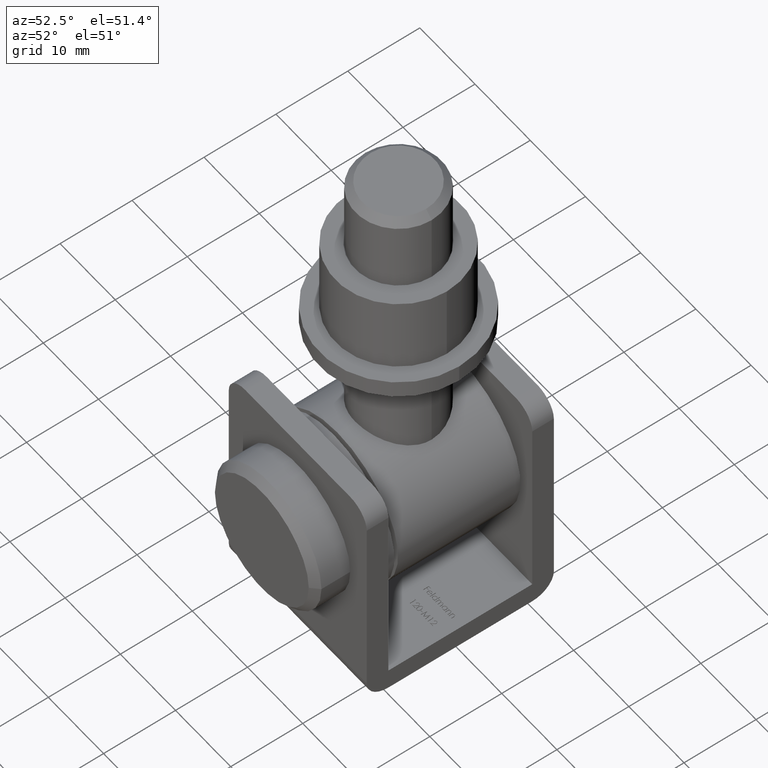
[diagram: clean part render]
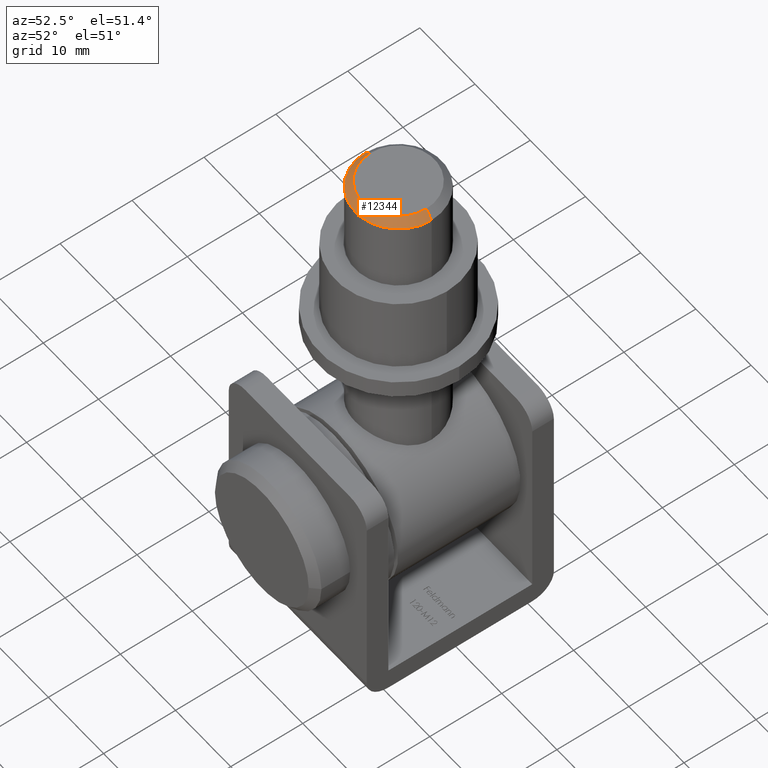
[diagram: same view with one face highlighted and labeled with its STEP entity id]
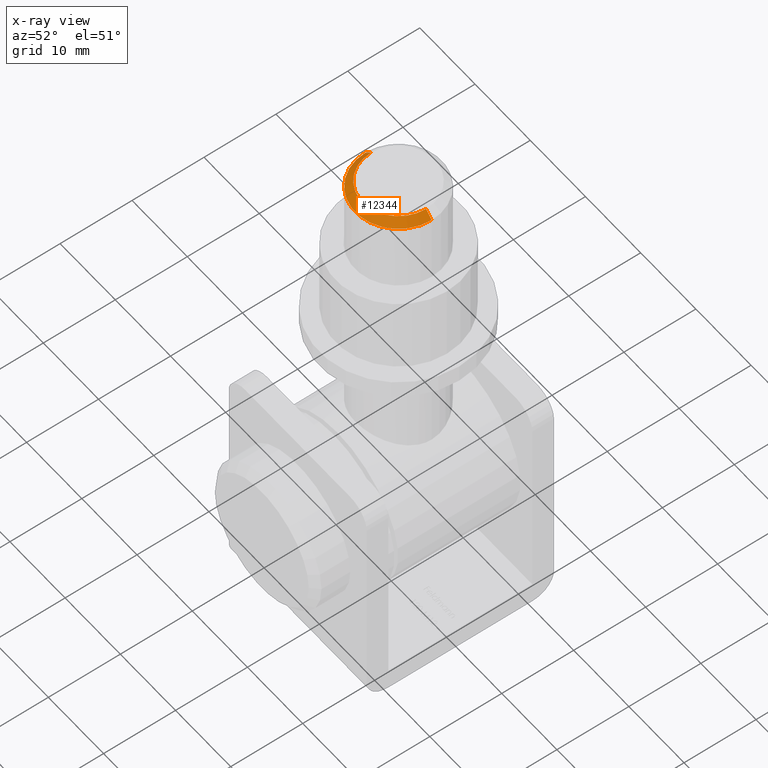
[diagram: x-ray of the same camera — body ghosted, the highlighted face saturated]
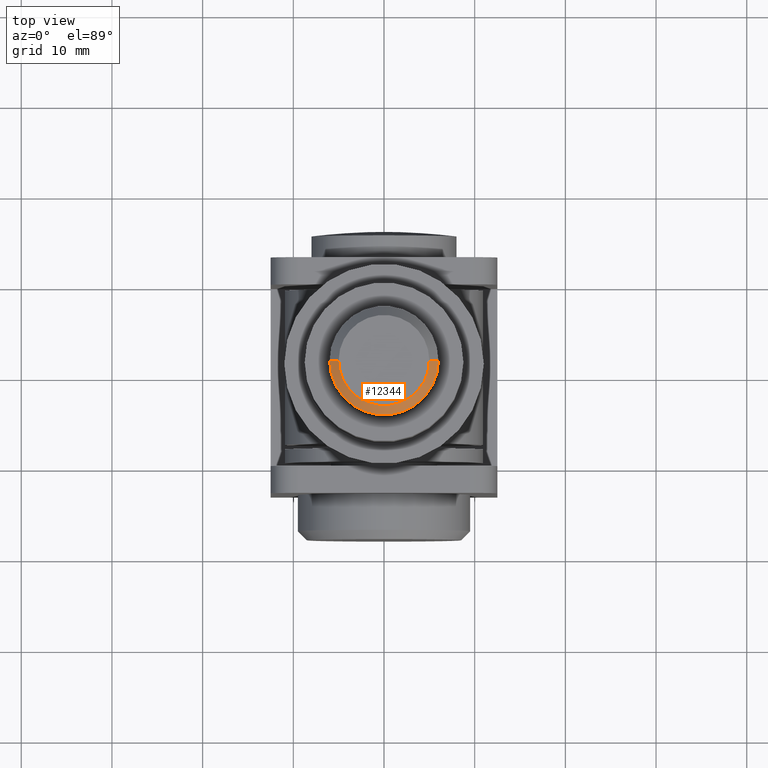
[diagram: same view with one face highlighted and labeled with its STEP entity id]
A machine part, auxiliary view. The second image highlights one B-rep face of the part: STEP entity #12344.
The next image is the same camera in x-ray: the body ghosted, the highlighted face saturated — about 0% of this face is hidden behind the body in this view.
A second angle (top view) of the same face is appended — the face is thin or edge-on in the first view.
In plain terms, the highlighted conical surface has half-angle 45 deg.
Its self-contained STEP definition (entity closure, byte-faithful):
#233 = DIRECTION ( 'NONE',  ( 0.7071067811865483499, 8.659560562354943952E-17, -0.7071067811865465735 ) ) ;
#914 = LINE ( 'NONE', #15166, #8227 ) ;
#1153 = ORIENTED_EDGE ( 'NONE', *, *, #11149, .F. ) ;
#1271 = VERTEX_POINT ( 'NONE', #5251 ) ;
#1982 = CARTESIAN_POINT ( 'NONE',  ( 0.000000000000000000, 0.000000000000000000, 58.99999999999999289 ) ) ;
#2601 = LINE ( 'NONE', #8448, #6636 ) ;
#3068 = CIRCLE ( 'NONE', #12962, 4.999999999999990230 ) ;
#3252 = DIRECTION ( 'NONE',  ( 1.000000000000000000, 0.000000000000000000, 0.000000000000000000 ) ) ;
#3586 = CONICAL_SURFACE ( 'NONE', #10206, 4.999999999999990230, 0.7853981633974496113 ) ;
#4681 = DIRECTION ( 'NONE',  ( -0.7071067811865483499, 0.000000000000000000, -0.7071067811865465735 ) ) ;
#5251 = CARTESIAN_POINT ( 'NONE',  ( -4.999999999999990230, 0.000000000000000000, 60.00000000000000000 ) ) ;
#5418 = DIRECTION ( 'NONE',  ( 1.000000000000000000, 0.000000000000000000, 0.000000000000000000 ) ) ;
#5467 = EDGE_CURVE ( 'NONE', #10371, #13742, #2601, .T. ) ;
#6038 = CIRCLE ( 'NONE', #8426, 6.000000000000000888 ) ;
#6230 = ORIENTED_EDGE ( 'NONE', *, *, #7713, .F. ) ;
#6636 = VECTOR ( 'NONE', #233, 1000.000000000000114 ) ;
#7713 = EDGE_CURVE ( 'NONE', #13742, #15097, #6038, .T. ) ;
#8143 = FACE_OUTER_BOUND ( 'NONE', #11565, .T. ) ;
#8227 = VECTOR ( 'NONE', #4681, 1000.000000000000114 ) ;
#8426 = AXIS2_PLACEMENT_3D ( 'NONE', #1982, #10093, #3252 ) ;
#8448 = CARTESIAN_POINT ( 'NONE',  ( 4.999999999999990230, 6.123233995736754449E-16, 60.00000000000000000 ) ) ;
#8746 = CARTESIAN_POINT ( 'NONE',  ( 0.000000000000000000, 0.000000000000000000, 60.00000000000000000 ) ) ;
#8838 = DIRECTION ( 'NONE',  ( 0.000000000000000000, 0.000000000000000000, 1.000000000000000000 ) ) ;
#8866 = ORIENTED_EDGE ( 'NONE', *, *, #5467, .F. ) ;
#9389 = ORIENTED_EDGE ( 'NONE', *, *, #14979, .T. ) ;
#9470 = CARTESIAN_POINT ( 'NONE',  ( -6.000000000000000888, 7.347880794884120722E-16, 58.99999999999999289 ) ) ;
#9758 = DIRECTION ( 'NONE',  ( -1.000000000000000000, 0.000000000000000000, 0.000000000000000000 ) ) ;
#9765 = CARTESIAN_POINT ( 'NONE',  ( 6.000000000000000888, 0.000000000000000000, 58.99999999999999289 ) ) ;
#9966 = DIRECTION ( 'NONE',  ( 0.000000000000000000, 0.000000000000000000, -1.000000000000000000 ) ) ;
#10093 = DIRECTION ( 'NONE',  ( 0.000000000000000000, 0.000000000000000000, -1.000000000000000000 ) ) ;
#10206 = AXIS2_PLACEMENT_3D ( 'NONE', #8746, #9966, #9758 ) ;
#10371 = VERTEX_POINT ( 'NONE', #10761 ) ;
#10761 = CARTESIAN_POINT ( 'NONE',  ( 4.999999999999990230, 6.735557395310437093E-16, 60.00000000000000000 ) ) ;
#11149 = EDGE_CURVE ( 'NONE', #1271, #10371, #3068, .T. ) ;
#11565 = EDGE_LOOP ( 'NONE', ( #8866, #1153, #9389, #6230 ) ) ;
#12344 = ADVANCED_FACE ( 'NONE', ( #8143 ), #3586, .T. ) ;
#12962 = AXIS2_PLACEMENT_3D ( 'NONE', #14681, #8838, #5418 ) ;
#13742 = VERTEX_POINT ( 'NONE', #9765 ) ;
#14681 = CARTESIAN_POINT ( 'NONE',  ( 0.000000000000000000, 0.000000000000000000, 60.00000000000000000 ) ) ;
#14979 = EDGE_CURVE ( 'NONE', #1271, #15097, #914, .T. ) ;
#15097 = VERTEX_POINT ( 'NONE', #9470 ) ;
#15166 = CARTESIAN_POINT ( 'NONE',  ( -4.999999999999990230, 0.000000000000000000, 60.00000000000000000 ) ) ;